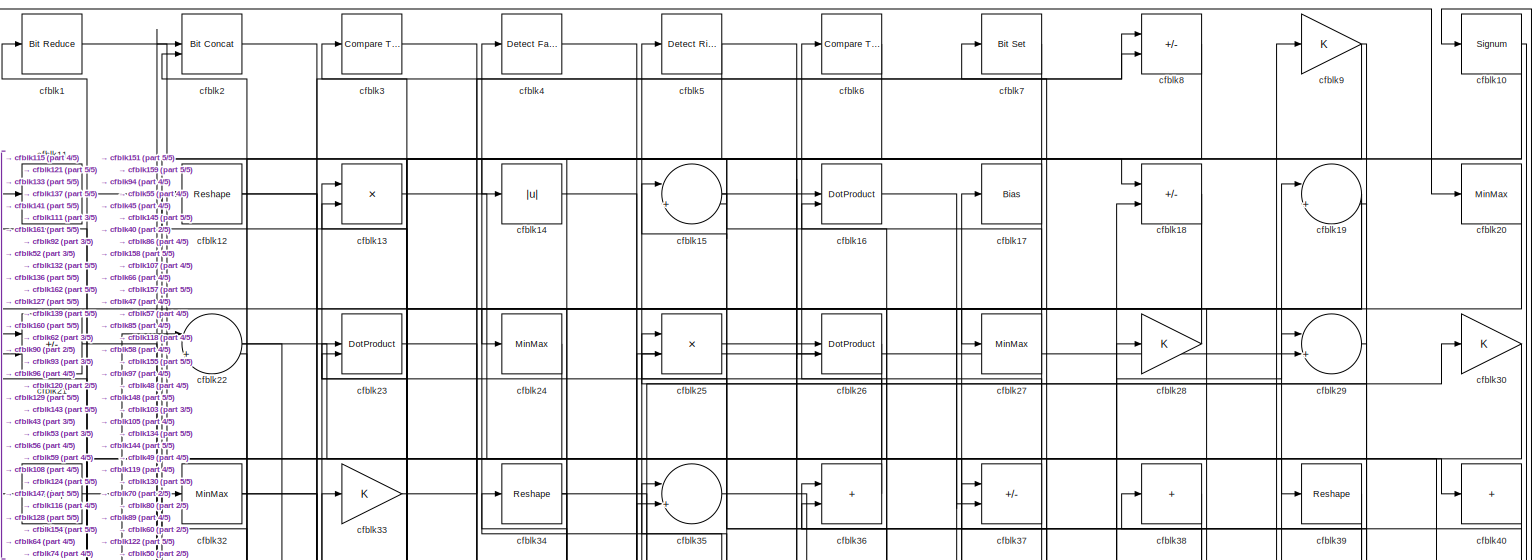
[diagram: root canvas - part 1/5, full width, top band]
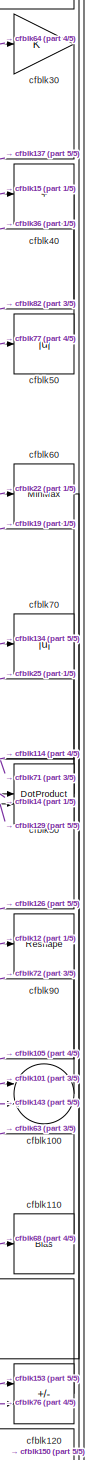
[diagram: root canvas - part 2/5, middle right region]
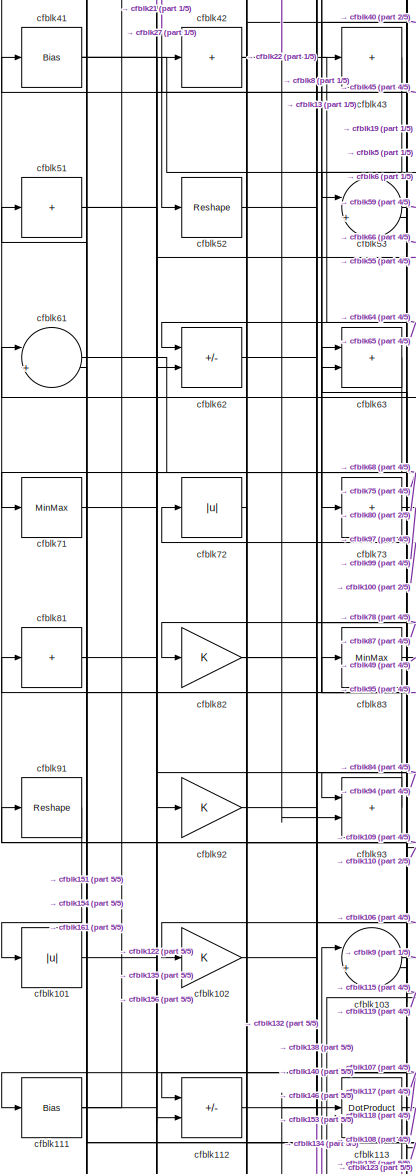
[diagram: root canvas - part 3/5, middle left region]
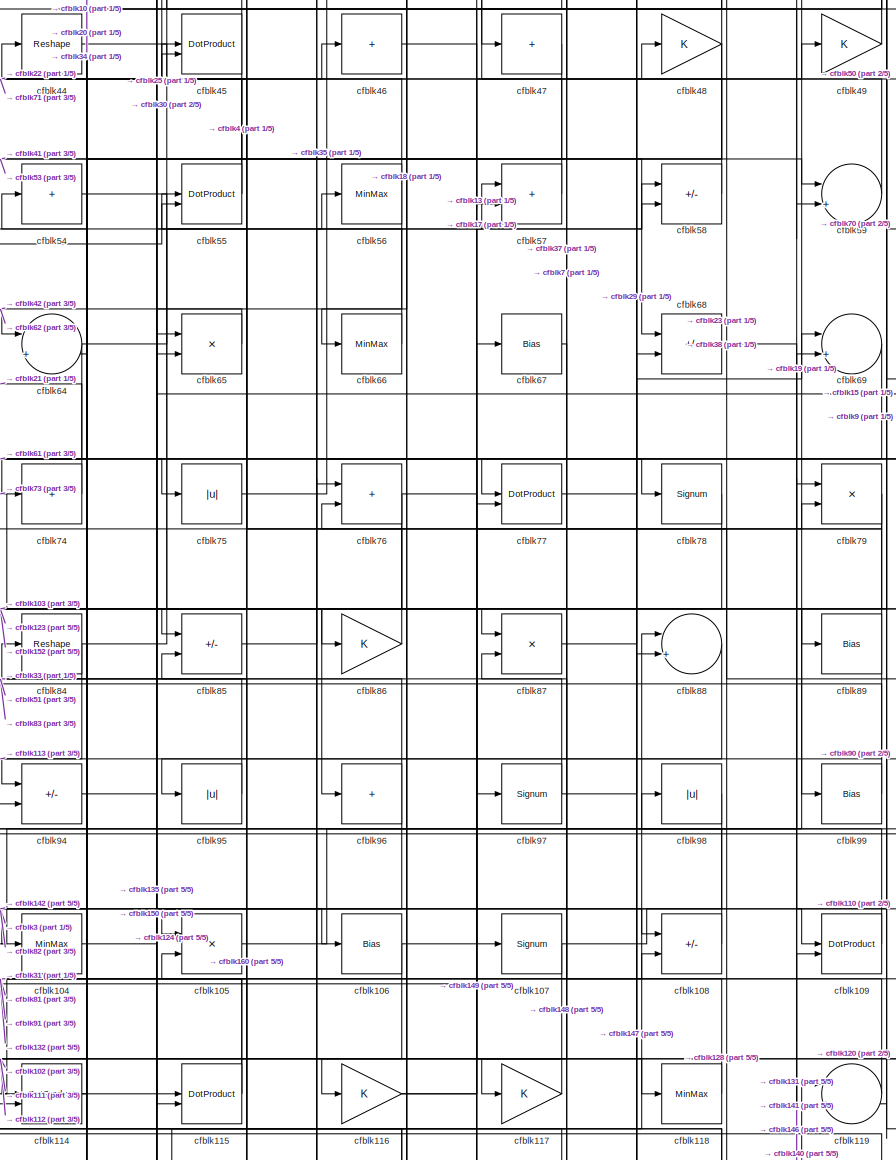
[diagram: root canvas - part 4/5, central region]
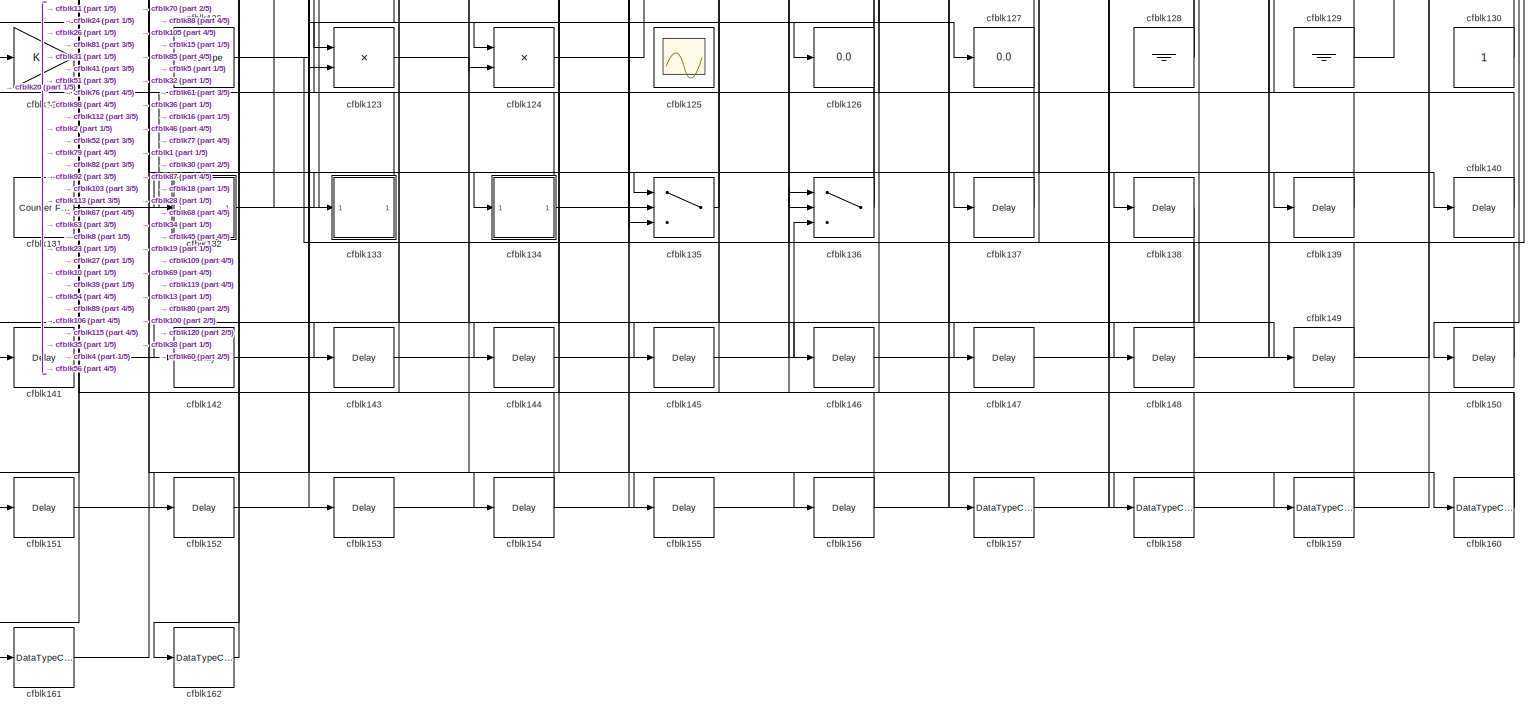
[diagram: root canvas - part 5/5, full width, bottom band]
MODEL slx_0c1c9b4957af
KIND model
CONFIG AbsTol = auto
CONFIG EnableMultiTasking = off
CONFIG FixedStep = auto
CONFIG MaxStep = auto
CONFIG MinStep = auto
CONFIG RelTol = 1e-3
CONFIG SampleTimeConstraint = Unconstrained
CONFIG SolverName = VariableStepAuto
CONFIG StartTime = 0.0
CONFIG StopTime = 10.0
BLOCK [Reference] cfblk1  REF=hdlsllib/Logic and Bit
Operations/Bit Reduce
  SourceBlock = hdlsllib/Logic and Bit\nOperations/Bit Reduce
  SourceType = Bit Reduce
BLOCK [Signum] cfblk10
BLOCK [Sum] cfblk100
  Inputs = |++
BLOCK [Abs] cfblk101
  SaturateOnIntegerOverflow = off
BLOCK [Gain] cfblk102
BLOCK [Sum] cfblk103
  Inputs = |++
BLOCK [MinMax] cfblk104
BLOCK [Product] cfblk105
  Inputs = */
  RndMeth = Zero
  SaturateOnIntegerOverflow = on
BLOCK [Bias] cfblk106
  Bias = 0.0
  SaturateOnIntegerOverflow = off
BLOCK [Signum] cfblk107
BLOCK [Sum] cfblk108
  IconShape = rectangular
  Inputs = +-
BLOCK [DotProduct] cfblk109
  OutDataTypeStr = Inherit: Inherit via internal rule
BLOCK [Sum] cfblk11
  IconShape = rectangular
  Inputs = +
BLOCK [Bias] cfblk110
  Bias = 0.0
  SaturateOnIntegerOverflow = off
BLOCK [Bias] cfblk111
  Bias = 0.0
  SaturateOnIntegerOverflow = off
BLOCK [Sum] cfblk112
  IconShape = rectangular
  Inputs = +-
BLOCK [DotProduct] cfblk113
  OutDataTypeStr = Inherit: Inherit via internal rule
BLOCK [DotProduct] cfblk114
  OutDataTypeStr = Inherit: Inherit via internal rule
BLOCK [DotProduct] cfblk115
  OutDataTypeStr = Inherit: Inherit via internal rule
BLOCK [Gain] cfblk116
BLOCK [Gain] cfblk117
BLOCK [MinMax] cfblk118
BLOCK [Sum] cfblk119
  Inputs = |++
BLOCK [Reshape] cfblk12
BLOCK [Sum] cfblk120
  IconShape = rectangular
  Inputs = +-
BLOCK [Gain] cfblk121
BLOCK [Reshape] cfblk122
BLOCK [Product] cfblk123
  Inputs = */
  RndMeth = Zero
  SaturateOnIntegerOverflow = on
BLOCK [Product] cfblk124
  Inputs = */
  RndMeth = Zero
  SaturateOnIntegerOverflow = on
BLOCK [Scope] cfblk125
  Floating = on
  NumInputPorts = 1
  ScopeSpecificationString = Simulink.scopes.TimeScopeBlockCfg('CurrentConfiguration', extmgr.ConfigurationSet(extmgr.Configuration('Core','General UI',true,'FigureColor',[0.156862745098039 0.156862745098039 0.156862745098039]),extmgr.Configuration('Core','Source UI',true),extmgr.Configuration('Sources','WiredSimulink',true,'DataLoggingVariableName','ScopeData1','DataLoggingSaveFormat','StructureWithTime','DataLoggingLimitDat...<+2713ch>
BLOCK [Display] cfblk126
  Decimation = 1
BLOCK [Display] cfblk127
  Decimation = 1
BLOCK [Ground] cfblk128
BLOCK [Ground] cfblk129
BLOCK [Product] cfblk13
  Inputs = */
  RndMeth = Zero
  SaturateOnIntegerOverflow = on
BLOCK [Constant] cfblk130
  SampleTime = -1
BLOCK [Reference] cfblk131  REF=hdlsllib/Sources/Counter
Free-Running
  SourceBlock = hdlsllib/Sources/Counter\nFree-Running
  SourceType = Counter Free-Running
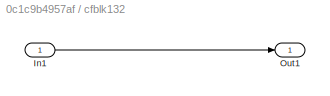
BLOCK [SubSystem] cfblk132
  LibrarySourceBlock = hdlsllib/Ports &\nSubsystems/Subsystem
BLOCK [Inport] cfblk132/In1
BLOCK [Outport] cfblk132/Out1
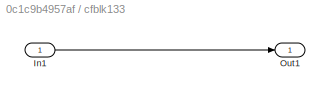
BLOCK [SubSystem] cfblk133
  LibrarySourceBlock = hdlsllib/Ports &\nSubsystems/Subsystem
BLOCK [Inport] cfblk133/In1
BLOCK [Outport] cfblk133/Out1
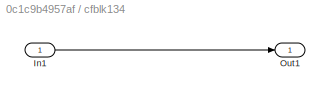
BLOCK [SubSystem] cfblk134
  LibrarySourceBlock = hdlsllib/Ports &\nSubsystems/Subsystem
BLOCK [Inport] cfblk134/In1
BLOCK [Outport] cfblk134/Out1
BLOCK [Switch] cfblk135
  InputSameDT = off
  SaturateOnIntegerOverflow = off
BLOCK [Switch] cfblk136
  InputSameDT = off
  SaturateOnIntegerOverflow = off
BLOCK [Delay] cfblk137
  InputPortMap = u0
  SampleTime = 1
BLOCK [Delay] cfblk138
  InputPortMap = u0
  SampleTime = 1
BLOCK [Delay] cfblk139
  InputPortMap = u0
  SampleTime = 1
BLOCK [Abs] cfblk14
  SaturateOnIntegerOverflow = off
BLOCK [Delay] cfblk140
  InputPortMap = u0
  SampleTime = 1
BLOCK [Delay] cfblk141
  InputPortMap = u0
  SampleTime = 1
BLOCK [Delay] cfblk142
  InputPortMap = u0
  SampleTime = 1
BLOCK [Delay] cfblk143
  InputPortMap = u0
  SampleTime = 1
BLOCK [Delay] cfblk144
  InputPortMap = u0
  SampleTime = 1
BLOCK [Delay] cfblk145
  InputPortMap = u0
  SampleTime = 1
BLOCK [Delay] cfblk146
  InputPortMap = u0
  SampleTime = 1
BLOCK [Delay] cfblk147
  InputPortMap = u0
  SampleTime = 1
BLOCK [Delay] cfblk148
  InputPortMap = u0
  SampleTime = 1
BLOCK [Delay] cfblk149
  InputPortMap = u0
  SampleTime = 1
BLOCK [Sum] cfblk15
  Inputs = |++
BLOCK [Delay] cfblk150
  InputPortMap = u0
  SampleTime = 1
BLOCK [Delay] cfblk151
  InputPortMap = u0
  SampleTime = 1
BLOCK [Delay] cfblk152
  InputPortMap = u0
  SampleTime = 1
BLOCK [Delay] cfblk153
  InputPortMap = u0
  SampleTime = 1
BLOCK [Delay] cfblk154
  InputPortMap = u0
  SampleTime = 1
BLOCK [Delay] cfblk155
  InputPortMap = u0
  SampleTime = 1
BLOCK [Delay] cfblk156
  InputPortMap = u0
  SampleTime = 1
BLOCK [DataTypeConversion] cfblk157
  OutDataTypeStr = uint8
  RndMeth = Floor
  SaturateOnIntegerOverflow = off
BLOCK [DataTypeConversion] cfblk158
  OutDataTypeStr = uint8
  RndMeth = Floor
  SaturateOnIntegerOverflow = off
BLOCK [DataTypeConversion] cfblk159
  OutDataTypeStr = uint8
  RndMeth = Floor
  SaturateOnIntegerOverflow = off
BLOCK [DotProduct] cfblk16
  OutDataTypeStr = Inherit: Inherit via internal rule
BLOCK [DataTypeConversion] cfblk160
  RndMeth = Floor
  SaturateOnIntegerOverflow = off
BLOCK [DataTypeConversion] cfblk161
  OutDataTypeStr = uint8
  RndMeth = Floor
  SaturateOnIntegerOverflow = off
BLOCK [DataTypeConversion] cfblk162
  OutDataTypeStr = uint8
  RndMeth = Floor
  SaturateOnIntegerOverflow = off
BLOCK [Bias] cfblk17
  Bias = 0.0
  SaturateOnIntegerOverflow = off
BLOCK [Sum] cfblk18
  IconShape = rectangular
  Inputs = +-
BLOCK [Sum] cfblk19
  Inputs = |++
BLOCK [Reference] cfblk2  REF=hdlsllib/Logic and Bit
Operations/Bit Concat
  SourceBlock = hdlsllib/Logic and Bit\nOperations/Bit Concat
  SourceType = Bit Concat
BLOCK [MinMax] cfblk20
BLOCK [Sum] cfblk21
  IconShape = rectangular
  Inputs = +-
BLOCK [Sum] cfblk22
  Inputs = |++
BLOCK [DotProduct] cfblk23
  OutDataTypeStr = Inherit: Inherit via internal rule
BLOCK [MinMax] cfblk24
BLOCK [Product] cfblk25
  Inputs = */
  RndMeth = Zero
  SaturateOnIntegerOverflow = on
BLOCK [DotProduct] cfblk26
  OutDataTypeStr = Inherit: Inherit via internal rule
BLOCK [MinMax] cfblk27
BLOCK [Gain] cfblk28
BLOCK [Sum] cfblk29
  Inputs = |++
BLOCK [Reference] cfblk3  REF=hdlsllib/Logic and Bit
Operations/Compare
To Zero
  SourceBlock = hdlsllib/Logic and Bit\nOperations/Compare\nTo Zero
  SourceType = Compare To Zero
BLOCK [Gain] cfblk30
BLOCK [Reshape] cfblk31
BLOCK [MinMax] cfblk32
BLOCK [Gain] cfblk33
BLOCK [Reshape] cfblk34
BLOCK [Sum] cfblk35
  Inputs = |++
BLOCK [Sum] cfblk36
  IconShape = rectangular
BLOCK [Sum] cfblk37
  IconShape = rectangular
  Inputs = +-
BLOCK [Sum] cfblk38
  IconShape = rectangular
  Inputs = +
BLOCK [Reshape] cfblk39
BLOCK [Reference] cfblk4  REF=hdlsllib/Logic and Bit
Operations/Detect Fall
Negative
  SourceBlock = hdlsllib/Logic and Bit\nOperations/Detect Fall\nNegative
  SourceType = Detect Fall Negative
BLOCK [Sum] cfblk40
  IconShape = rectangular
  Inputs = +
BLOCK [Bias] cfblk41
  Bias = 0.0
  SaturateOnIntegerOverflow = off
BLOCK [Sum] cfblk42
  IconShape = rectangular
  Inputs = +
BLOCK [Sum] cfblk43
  IconShape = rectangular
  Inputs = +
BLOCK [Reshape] cfblk44
BLOCK [DotProduct] cfblk45
  OutDataTypeStr = Inherit: Inherit via internal rule
BLOCK [Sum] cfblk46
  IconShape = rectangular
  Inputs = +
BLOCK [Sum] cfblk47
  IconShape = rectangular
  Inputs = +
BLOCK [Gain] cfblk48
BLOCK [Gain] cfblk49
BLOCK [Reference] cfblk5  REF=hdlsllib/Logic and Bit
Operations/Detect Rise
Positive
  SourceBlock = hdlsllib/Logic and Bit\nOperations/Detect Rise\nPositive
  SourceType = Detect Rise Positive
BLOCK [Abs] cfblk50
  SaturateOnIntegerOverflow = off
BLOCK [Sum] cfblk51
  IconShape = rectangular
  Inputs = +
BLOCK [Reshape] cfblk52
BLOCK [Sum] cfblk53
  Inputs = |++
BLOCK [Sum] cfblk54
  IconShape = rectangular
  Inputs = +
BLOCK [DotProduct] cfblk55
  OutDataTypeStr = Inherit: Inherit via internal rule
BLOCK [MinMax] cfblk56
BLOCK [Sum] cfblk57
  IconShape = rectangular
BLOCK [Sum] cfblk58
  IconShape = rectangular
  Inputs = +-
BLOCK [Sum] cfblk59
  Inputs = |++
BLOCK [Reference] cfblk6  REF=hdlsllib/Logic and Bit
Operations/Compare
To Zero
  SourceBlock = hdlsllib/Logic and Bit\nOperations/Compare\nTo Zero
  SourceType = Compare To Zero
BLOCK [MinMax] cfblk60
BLOCK [Sum] cfblk61
  Inputs = |++
BLOCK [Sum] cfblk62
  IconShape = rectangular
  Inputs = +-
BLOCK [Sum] cfblk63
  IconShape = rectangular
BLOCK [Sum] cfblk64
  Inputs = |++
BLOCK [Product] cfblk65
  Inputs = */
  RndMeth = Zero
  SaturateOnIntegerOverflow = on
BLOCK [MinMax] cfblk66
BLOCK [Bias] cfblk67
  Bias = 0.0
  SaturateOnIntegerOverflow = off
BLOCK [Sum] cfblk68
  IconShape = rectangular
  Inputs = +-
BLOCK [Sum] cfblk69
  Inputs = |++
BLOCK [Reference] cfblk7  REF=simulink/Logic and Bit
Operations/Bit Set
  LibrarySourceBlock = hdlsllib/Logic and Bit\nOperations/Bit Set
  SourceBlock = simulink/Logic and Bit\nOperations/Bit Set
  SourceType = Bit Set
BLOCK [Abs] cfblk70
  SaturateOnIntegerOverflow = off
BLOCK [MinMax] cfblk71
BLOCK [Abs] cfblk72
  SaturateOnIntegerOverflow = off
BLOCK [Sum] cfblk73
  IconShape = rectangular
  Inputs = +
BLOCK [Sum] cfblk74
  IconShape = rectangular
  Inputs = +
BLOCK [Abs] cfblk75
  SaturateOnIntegerOverflow = off
BLOCK [Sum] cfblk76
  IconShape = rectangular
BLOCK [DotProduct] cfblk77
  OutDataTypeStr = Inherit: Inherit via internal rule
BLOCK [Signum] cfblk78
BLOCK [Product] cfblk79
  Inputs = */
  RndMeth = Zero
  SaturateOnIntegerOverflow = on
BLOCK [Sum] cfblk8
  IconShape = rectangular
  Inputs = +-
BLOCK [DotProduct] cfblk80
  OutDataTypeStr = Inherit: Inherit via internal rule
BLOCK [Sum] cfblk81
  IconShape = rectangular
  Inputs = +
BLOCK [Gain] cfblk82
BLOCK [MinMax] cfblk83
BLOCK [Reshape] cfblk84
BLOCK [Sum] cfblk85
  IconShape = rectangular
  Inputs = +-
BLOCK [Gain] cfblk86
BLOCK [Product] cfblk87
  Inputs = */
  RndMeth = Zero
  SaturateOnIntegerOverflow = on
BLOCK [Sum] cfblk88
  Inputs = |++
BLOCK [Bias] cfblk89
  Bias = 0.0
  SaturateOnIntegerOverflow = off
BLOCK [Gain] cfblk9
BLOCK [Reshape] cfblk90
BLOCK [Reshape] cfblk91
BLOCK [Gain] cfblk92
BLOCK [Sum] cfblk93
  IconShape = rectangular
BLOCK [Sum] cfblk94
  IconShape = rectangular
  Inputs = +-
BLOCK [Abs] cfblk95
  SaturateOnIntegerOverflow = off
BLOCK [Sum] cfblk96
  IconShape = rectangular
  Inputs = +
BLOCK [Signum] cfblk97
BLOCK [Abs] cfblk98
  SaturateOnIntegerOverflow = off
BLOCK [Bias] cfblk99
  Bias = 0.0
  SaturateOnIntegerOverflow = off
LINE cfblk100:1 -> cfblk72:1
LINE cfblk101:1 -> cfblk100:1
LINE cfblk102:1 -> cfblk118:1
LINE cfblk103:1 -> cfblk9:1
LINE cfblk104:1 -> cfblk56:1
LINE cfblk105:1 -> cfblk19:1
NET cfblk106:1 -> cfblk135:2, cfblk48:1
NET cfblk107:1 -> cfblk109:1, cfblk112:1
LINE cfblk108:1 -> cfblk98:1
LINE cfblk109:1 -> cfblk42:1
NET cfblk10:1 -> cfblk116:1, cfblk132:1, cfblk154:1
LINE cfblk110:1 -> cfblk63:1
NET cfblk111:1 -> cfblk22:1, cfblk62:2
LINE cfblk112:1 -> cfblk138:1
NET cfblk113:1 -> cfblk108:2, cfblk123:1
NET cfblk114:1 -> cfblk44:1, cfblk65:1
NET cfblk115:1 -> cfblk31:1, cfblk81:1
NET cfblk116:1 -> cfblk58:2, cfblk79:2
LINE cfblk117:1 -> cfblk111:1
LINE cfblk118:1 -> cfblk37:1
LINE cfblk119:1 -> cfblk91:1
LINE cfblk11:1 -> cfblk39:1
LINE cfblk120:1 -> cfblk12:1
LINE cfblk121:1 -> cfblk20:1
NET cfblk122:1 -> cfblk10:1, cfblk155:1
LINE cfblk123:1 -> cfblk158:1
LINE cfblk124:1 -> cfblk88:1
NET cfblk128:1 -> cfblk34:1, cfblk45:2
NET cfblk129:1 -> cfblk13:2, cfblk80:2
NET cfblk12:1 -> cfblk27:1, cfblk90:1
LINE cfblk130:1 -> cfblk38:1
LINE cfblk131:1 -> cfblk109:2
LINE cfblk132/In1:1 -> cfblk132/Out1:1
NET cfblk132:1 -> cfblk113:1, cfblk67:1
LINE cfblk133/In1:1 -> cfblk133/Out1:1
LINE cfblk133:1 -> cfblk11:1
LINE cfblk134/In1:1 -> cfblk134/Out1:1
NET cfblk134:1 -> cfblk103:1, cfblk70:1
LINE cfblk135:1 -> cfblk105:2
NET cfblk136:1 -> cfblk32:1, cfblk61:1
LINE cfblk137:1 -> cfblk1:1
LINE cfblk138:1 -> cfblk162:1
LINE cfblk139:1 -> cfblk36:2
LINE cfblk13:1 -> cfblk47:1
LINE cfblk140:1 -> cfblk119:1
LINE cfblk141:1 -> cfblk69:2
LINE cfblk142:1 -> cfblk68:2
LINE cfblk143:1 -> cfblk100:2
LINE cfblk144:1 -> cfblk136:3
LINE cfblk145:1 -> cfblk136:1
LINE cfblk146:1 -> cfblk79:1
LINE cfblk147:1 -> cfblk88:2
LINE cfblk148:1 -> cfblk87:2
LINE cfblk149:1 -> cfblk76:1
LINE cfblk14:1 -> cfblk80:1
LINE cfblk150:1 -> cfblk115:1
LINE cfblk151:1 -> cfblk35:2
LINE cfblk152:1 -> cfblk77:2
LINE cfblk153:1 -> cfblk120:1
LINE cfblk154:1 -> cfblk61:2
LINE cfblk155:1 -> cfblk18:2
LINE cfblk156:1 -> cfblk63:2
LINE cfblk157:1 -> cfblk28:1
LINE cfblk158:1 -> cfblk16:1
LINE cfblk159:1 -> cfblk16:2
NET cfblk15:1 -> cfblk145:1, cfblk40:1
NET cfblk160:1 -> cfblk54:1, cfblk85:2
LINE cfblk161:1 -> cfblk2:1
LINE cfblk162:1 -> cfblk2:2
LINE cfblk16:1 -> cfblk157:1
NET cfblk17:1 -> cfblk14:1, cfblk21:1
NET cfblk18:1 -> cfblk37:2, cfblk66:1
NET cfblk19:1 -> cfblk148:1, cfblk53:1, cfblk93:1
LINE cfblk1:1 -> cfblk18:1
LINE cfblk20:1 -> cfblk74:1
LINE cfblk21:1 -> cfblk92:1
NET cfblk22:1 -> cfblk60:1, cfblk93:2
LINE cfblk23:1 -> cfblk147:1
LINE cfblk24:1 -> cfblk141:1
LINE cfblk25:1 -> cfblk26:1
LINE cfblk26:1 -> cfblk121:1
NET cfblk27:1 -> cfblk124:2, cfblk52:1
LINE cfblk28:1 -> cfblk24:1
LINE cfblk29:1 -> cfblk119:2
LINE cfblk2:1 -> cfblk160:1
LINE cfblk30:1 -> cfblk137:1
LINE cfblk31:1 -> cfblk133:1
NET cfblk32:1 -> cfblk127:1, cfblk139:1
LINE cfblk33:1 -> cfblk8:2
NET cfblk34:1 -> cfblk59:2, cfblk64:2
LINE cfblk35:1 -> cfblk107:1
LINE cfblk36:1 -> cfblk5:1
NET cfblk37:1 -> cfblk6:1, cfblk85:1
LINE cfblk38:1 -> cfblk57:2
NET cfblk39:1 -> cfblk134:1, cfblk144:1
LINE cfblk3:1 -> cfblk108:1
LINE cfblk40:1 -> cfblk82:1
NET cfblk41:1 -> cfblk135:1, cfblk68:1, cfblk75:1, cfblk94:2
NET cfblk42:1 -> cfblk64:1, cfblk87:1
LINE cfblk43:1 -> cfblk73:1
LINE cfblk44:1 -> cfblk46:1
NET cfblk45:1 -> cfblk4:1, cfblk65:2
LINE cfblk46:1 -> cfblk149:1
LINE cfblk47:1 -> cfblk94:1
NET cfblk48:1 -> cfblk104:1, cfblk114:1, cfblk23:1
LINE cfblk49:1 -> cfblk15:1
LINE cfblk4:1 -> cfblk159:1
LINE cfblk50:1 -> cfblk36:1
NET cfblk51:1 -> cfblk122:1, cfblk156:1
LINE cfblk52:1 -> cfblk153:1
LINE cfblk53:1 -> cfblk59:1
LINE cfblk54:1 -> cfblk86:1
NET cfblk55:1 -> cfblk22:2, cfblk25:1
NET cfblk56:1 -> cfblk135:3, cfblk23:2
LINE cfblk57:1 -> cfblk17:1
LINE cfblk58:1 -> cfblk7:1
LINE cfblk59:1 -> cfblk3:1
NET cfblk5:1 -> cfblk136:2, cfblk53:2
LINE cfblk60:1 -> cfblk150:1
LINE cfblk61:1 -> cfblk97:1
LINE cfblk62:1 -> cfblk8:1
LINE cfblk63:1 -> cfblk161:1
NET cfblk64:1 -> cfblk112:2, cfblk30:1
LINE cfblk65:1 -> cfblk62:1
LINE cfblk66:1 -> cfblk41:1
LINE cfblk67:1 -> cfblk117:1
LINE cfblk68:1 -> cfblk110:1
LINE cfblk69:1 -> cfblk77:1
LINE cfblk6:1 -> cfblk43:1
NET cfblk70:1 -> cfblk114:2, cfblk19:2
LINE cfblk71:1 -> cfblk45:1
LINE cfblk72:1 -> cfblk102:1
LINE cfblk73:1 -> cfblk99:1
LINE cfblk74:1 -> cfblk21:2
LINE cfblk75:1 -> cfblk78:1
NET cfblk76:1 -> cfblk120:2, cfblk152:1, cfblk96:1
LINE cfblk77:1 -> cfblk50:1
LINE cfblk78:1 -> cfblk103:2
NET cfblk79:1 -> cfblk123:2, cfblk76:2
LINE cfblk7:1 -> cfblk26:2
NET cfblk80:1 -> cfblk126:1, cfblk25:2, cfblk71:1
NET cfblk81:1 -> cfblk151:1, cfblk55:1
NET cfblk82:1 -> cfblk106:1, cfblk146:1
LINE cfblk83:1 -> cfblk49:1
NET cfblk84:1 -> cfblk113:2, cfblk58:1
LINE cfblk85:1 -> cfblk57:1
LINE cfblk86:1 -> cfblk35:1
LINE cfblk87:1 -> cfblk69:1
LINE cfblk88:1 -> cfblk95:1
NET cfblk89:1 -> cfblk124:1, cfblk55:2
LINE cfblk8:1 -> cfblk143:1
LINE cfblk90:1 -> cfblk105:1
LINE cfblk91:1 -> cfblk101:1
LINE cfblk92:1 -> cfblk140:1
LINE cfblk93:1 -> cfblk13:1
LINE cfblk94:1 -> cfblk29:2
LINE cfblk95:1 -> cfblk83:1
NET cfblk96:1 -> cfblk115:2, cfblk33:1
NET cfblk97:1 -> cfblk29:1, cfblk51:1
LINE cfblk98:1 -> cfblk142:1
LINE cfblk99:1 -> cfblk84:1
NET cfblk9:1 -> cfblk15:2, cfblk89:1
note: NET lines group one-source signal fan-out (src -> all destinations, sorted); 1:1 wires keep LINE
